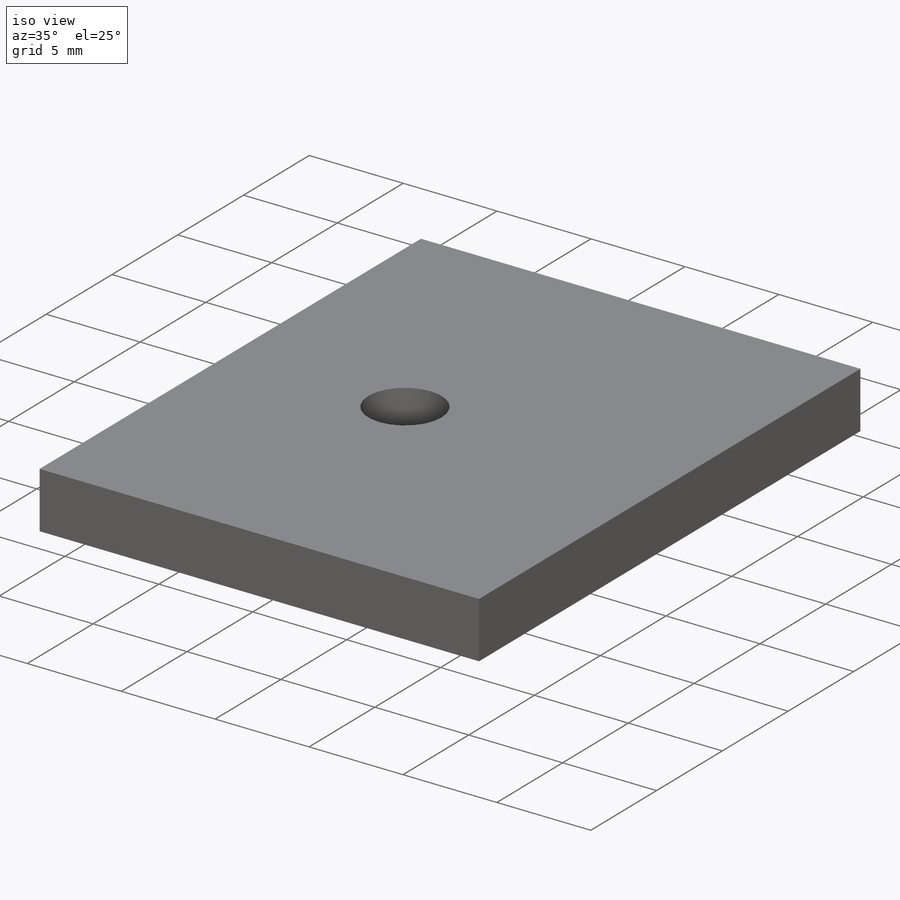
[diagram: iso view]
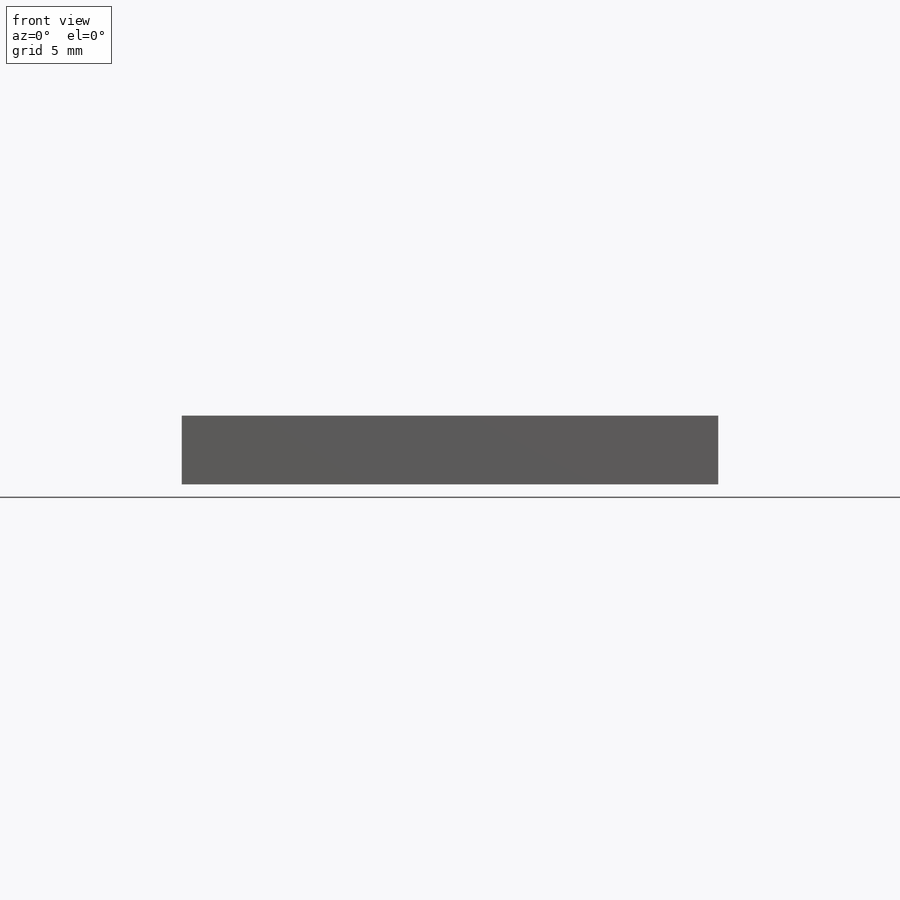
[diagram: front view]
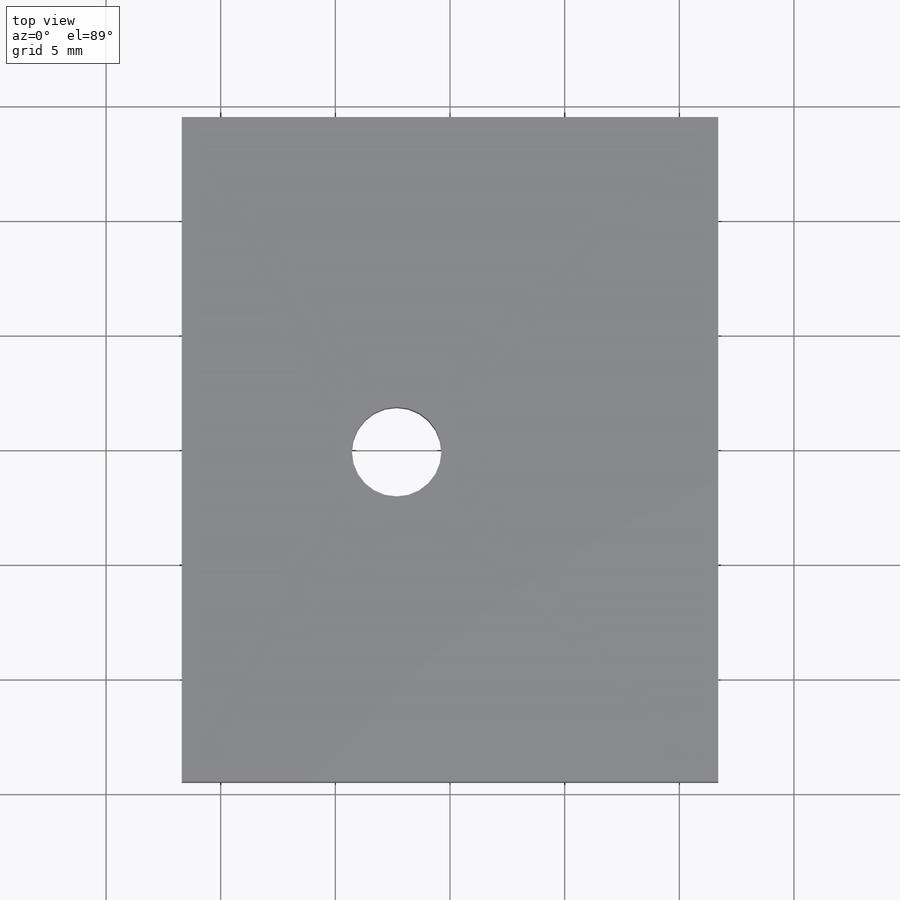
[diagram: top view]
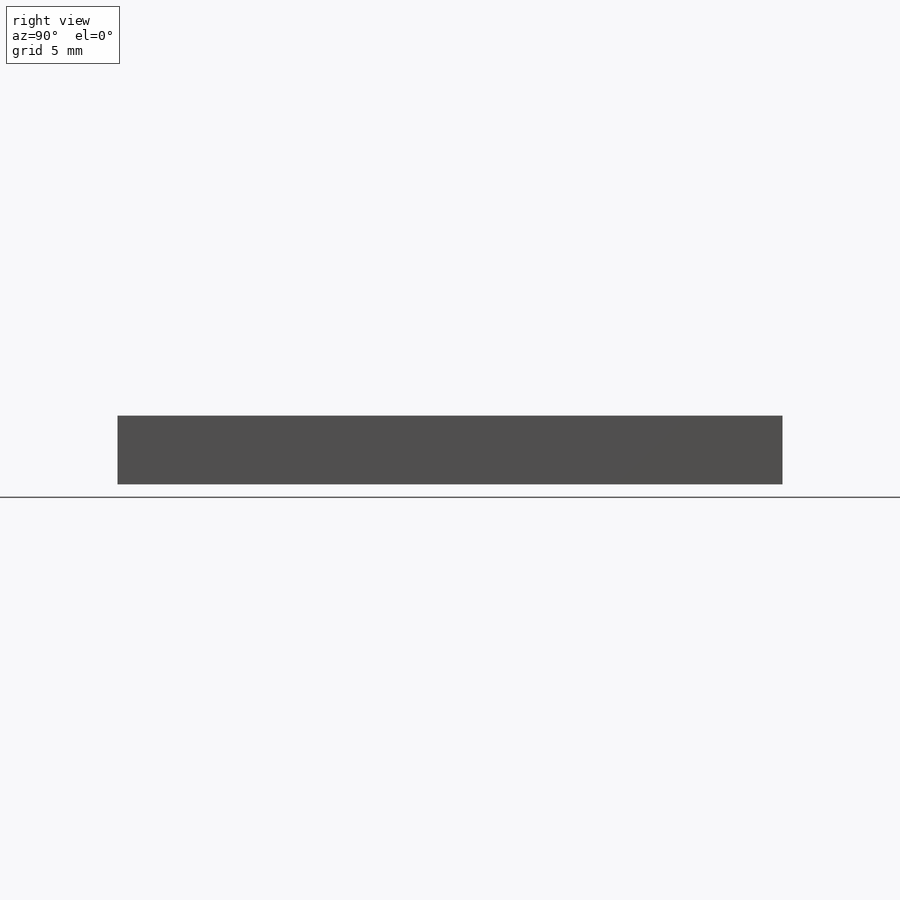
[diagram: right view]
SOLIDWORKS PART (.sldprt)
format: sldprt  version: not decoded by parser v0  size: 235,008 bytes
history: native  units: mm
features: sketch x7, cut_extrude x4, extrude x3, material x1 (+12 scaffold rows collapsed)
feature tree (27):
  scaffold x12  (default folders/planes/origin — collapsed)
  material  "Custom Plastic"
  sketch  "Sketch1"  dims[c1.D7=2.0mm c1.D8=2.0mm c1.D10=2.0mm c1.D1=29.0mm c1.D2=23.4mm c1.D3=6.0mm c1.D4=6.0mm c1.D5=18.0mm c1.D6=2.7mm c1.D9=10.7mm c2.D7=17.4mm c2.D8=18.0mm]
  extrude  "Boss-Extrude1"  Depth=3mm
  sketch  "Sketch5"  dims[D1=2.88mm]
  cut_extrude  "Cut-Extrude3"  Depth=10mm
  sketch  "Sketch7"
  cut_extrude  "Cut-Extrude4"  Depth=10mm
  sketch  "Sketch8"  dims[c1.D1=2.0mm c1.D2=2.0mm c2.D1=17.4mm]
  cut_extrude  "Cut-Extrude5"  Depth=10mm
  sketch  "Sketch9"
  extrude  "Boss-Extrude3"  [1 undecoded]
  sketch  "Sketch10"  dims[D1=3.9mm D2=~13.774522mm]
  cut_extrude  "Cut-Extrude6"  Depth=10mm
  sketch  "Sketch11"  dims[D1=0.0mm]
  extrude  "Boss-Extrude4"  [1 undecoded]
decode coverage: 10 of 14 modeling features carry decoded parameters
note: ~ marks probable driven/reference dimensions
note: 2 parameter values undecoded
note: suppression state not decoded; provenance and decode notes live in map.json
